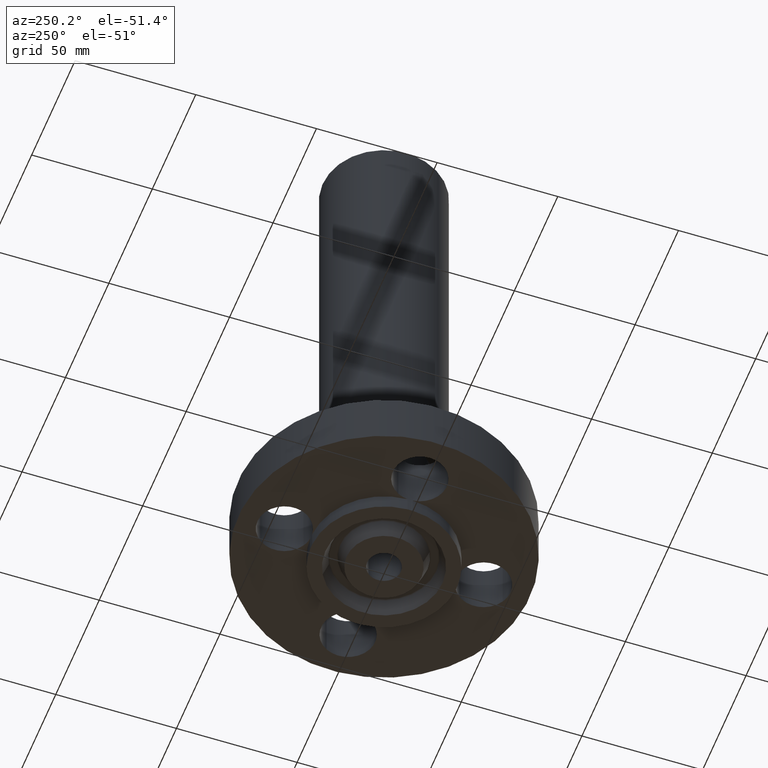
[diagram: clean part render]
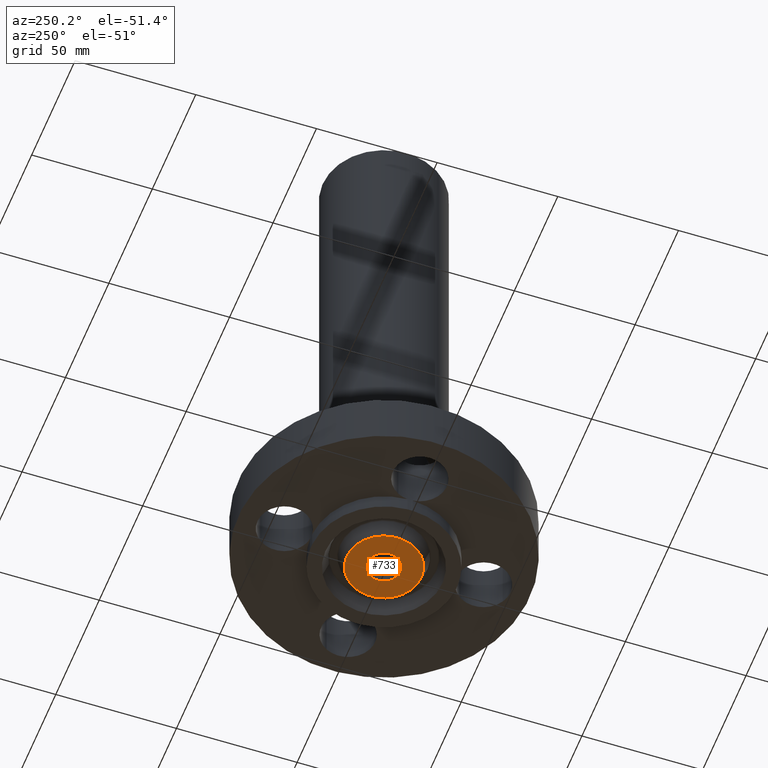
[diagram: same view with one face highlighted and labeled with its STEP entity id]
A machine part, auxiliary view. The second image highlights one B-rep face of the part: STEP entity #733.
In plain terms, the highlighted planar face has unit normal (0, 0, -1).
Its self-contained STEP definition (entity closure, byte-faithful):
#317=AXIS2_PLACEMENT_3D('Plane Axis2P3D',#314,#315,#316) ;
#682=AXIS2_PLACEMENT_3D('Circle Axis2P3D',#680,#681,$) ;
#701=AXIS2_PLACEMENT_3D('Circle Axis2P3D',#699,#700,$) ;
#713=AXIS2_PLACEMENT_3D('Circle Axis2P3D',#711,#712,$) ;
#722=AXIS2_PLACEMENT_3D('Circle Axis2P3D',#720,#721,$) ;
#314=CARTESIAN_POINT('Axis2P3D Location',(0.,0.609500000002,-0.250000000001)) ;
#677=CARTESIAN_POINT('Vertex',(0.131842023117,0.241335204521,-0.250000000001)) ;
#680=CARTESIAN_POINT('Axis2P3D Location',(0.,0.,-0.250000000001)) ;
#684=CARTESIAN_POINT('Vertex',(-0.131842023117,-0.241335204521,-0.250000000001)) ;
#699=CARTESIAN_POINT('Axis2P3D Location',(0.,0.,-0.250000000001)) ;
#711=CARTESIAN_POINT('Axis2P3D Location',(0.,0.,-0.250000000001)) ;
#715=CARTESIAN_POINT('Vertex',(-0.29220986578,-0.534886571474,-0.250000000001)) ;
#717=CARTESIAN_POINT('Vertex',(0.29220986578,0.534886571474,-0.250000000001)) ;
#720=CARTESIAN_POINT('Axis2P3D Location',(0.,0.,-0.250000000001)) ;
#315=DIRECTION('Axis2P3D Direction',(0.,0.,-0.0393700787402)) ;
#316=DIRECTION('Axis2P3D XDirection',(0.0393700787402,0.,0.)) ;
#681=DIRECTION('Axis2P3D Direction',(0.,0.,-0.0393700787402)) ;
#700=DIRECTION('Axis2P3D Direction',(0.,0.,-0.0393700787402)) ;
#712=DIRECTION('Axis2P3D Direction',(0.,0.,-0.0393700787402)) ;
#721=DIRECTION('Axis2P3D Direction',(0.,0.,-0.0393700787402)) ;
#726=ORIENTED_EDGE('',*,*,#719,.T.) ;
#727=ORIENTED_EDGE('',*,*,#724,.T.) ;
#730=ORIENTED_EDGE('',*,*,#686,.F.) ;
#731=ORIENTED_EDGE('',*,*,#703,.F.) ;
#732=FACE_BOUND('',#729,.T.) ;
#733=ADVANCED_FACE('PartBody',(#728,#732),#318,.T.) ;
#683=CIRCLE('generated circle',#682,0.275000000001) ;
#702=CIRCLE('generated circle',#701,0.275000000001) ;
#714=CIRCLE('generated circle',#713,0.609500000002) ;
#723=CIRCLE('generated circle',#722,0.609500000002) ;
#686=EDGE_CURVE('',#678,#685,#683,.T.) ;
#703=EDGE_CURVE('',#685,#678,#702,.T.) ;
#719=EDGE_CURVE('',#716,#718,#714,.T.) ;
#724=EDGE_CURVE('',#718,#716,#723,.T.) ;
#725=EDGE_LOOP('',(#726,#727)) ;
#729=EDGE_LOOP('',(#730,#731)) ;
#728=FACE_OUTER_BOUND('',#725,.T.) ;
#318=PLANE('',#317) ;
#678=VERTEX_POINT('',#677) ;
#685=VERTEX_POINT('',#684) ;
#716=VERTEX_POINT('',#715) ;
#718=VERTEX_POINT('',#717) ;